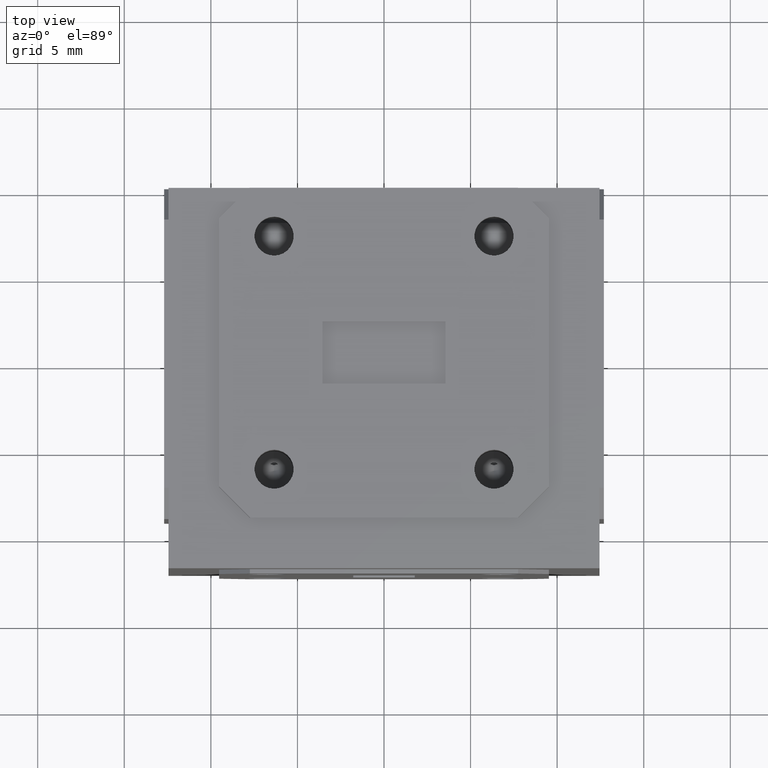
[diagram: clean part render]
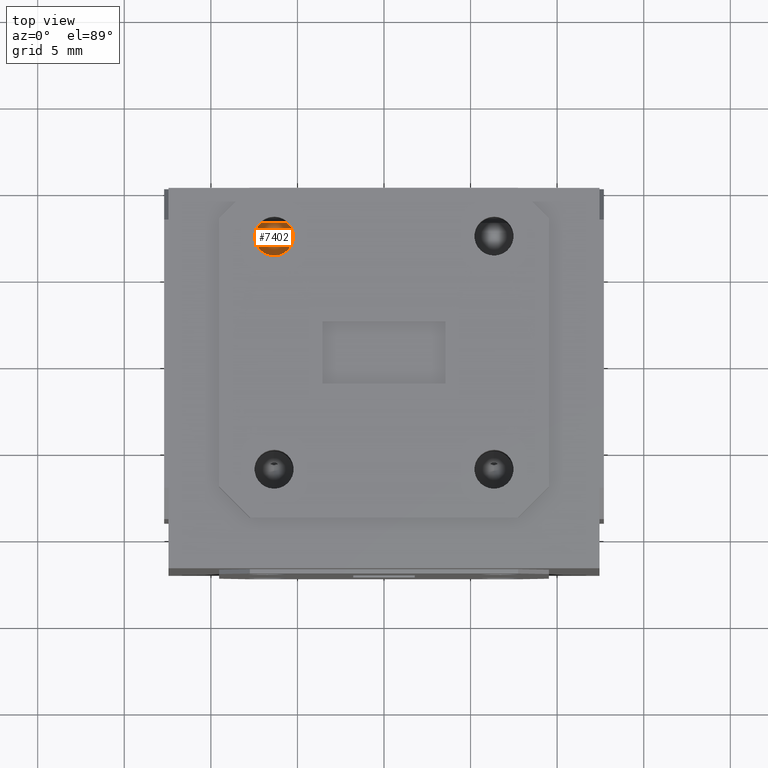
[diagram: same view with one face highlighted and labeled with its STEP entity id]
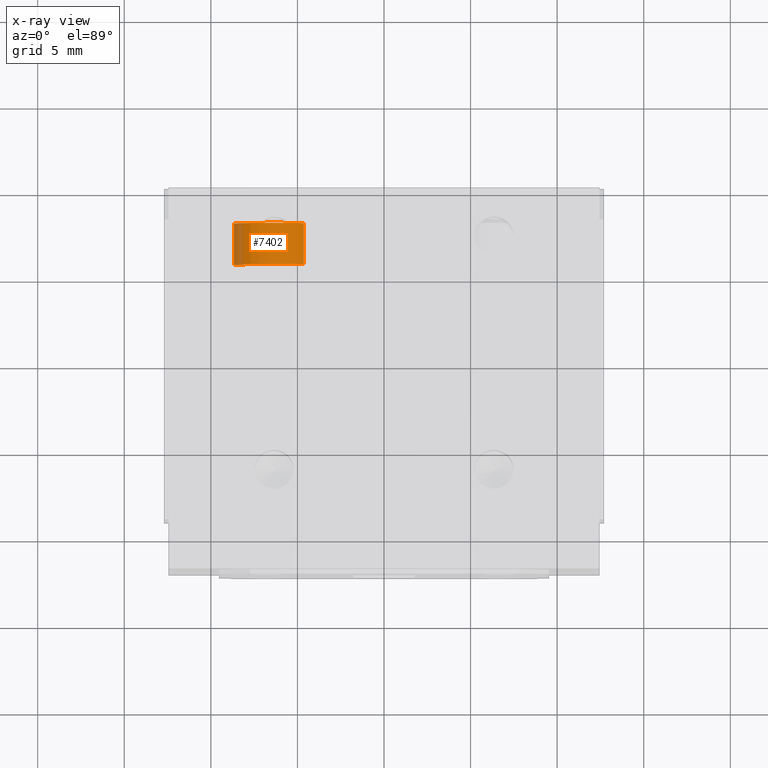
[diagram: x-ray of the same camera — body ghosted, the highlighted face saturated]
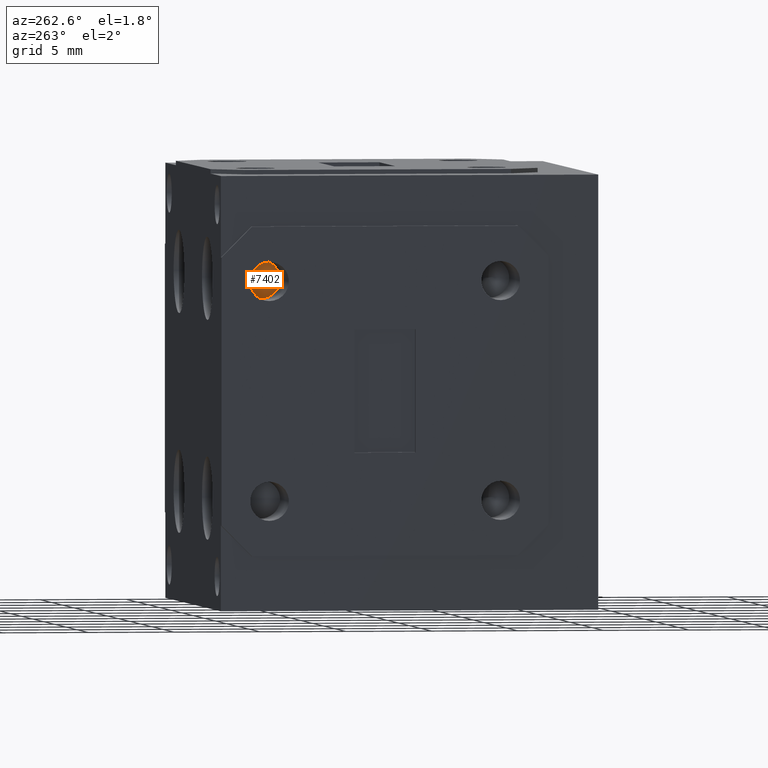
[diagram: same view with one face highlighted and labeled with its STEP entity id]
A machine part, top view. The second image highlights one B-rep face of the part: STEP entity #7402.
The next image is the same camera in x-ray: the body ghosted, the highlighted face saturated — about 13% of this face is hidden behind the body in this view.
A second angle (auxiliary view) of the same face is appended — the face is thin or edge-on in the first view.
In plain terms, the highlighted cylindrical surface (partial cylindrical patch) has radius 2.3241 mm, axis along (0, -1, -0).
Its self-contained STEP definition (entity closure, byte-faithful):
#547 = VERTEX_POINT ( 'NONE', #8699 ) ;
#1359 = DIRECTION ( 'NONE',  ( 0.7407202466362239335, 0.000000000000000000, 0.6718136022909715344 ) ) ;
#1417 = FACE_OUTER_BOUND ( 'NONE', #4294, .T. ) ;
#1430 = ORIENTED_EDGE ( 'NONE', *, *, #8737, .T. ) ;
#1705 = VERTEX_POINT ( 'NONE', #11156 ) ;
#1827 = VERTEX_POINT ( 'NONE', #1929 ) ;
#1929 = CARTESIAN_POINT ( 'NONE',  ( -0.3177759025672145521, -0.1708500000000000296, 0.1885290553903762323 ) ) ;
#2069 = CIRCLE ( 'NONE', #3317, 0.09149999999999999800 ) ;
#2202 = DIRECTION ( 'NONE',  ( -0.7407202466362244886, 0.000000000000000000, -0.6718136022909708682 ) ) ;
#2414 = DIRECTION ( 'NONE',  ( 7.609667954468320450E-18, -1.000000000000000000, -3.485413720941533510E-17 ) ) ;
#2529 = ORIENTED_EDGE ( 'NONE', *, *, #6663, .F. ) ;
#2722 = VECTOR ( 'NONE', #2414, 39.37007874015748143 ) ;
#2750 = ORIENTED_EDGE ( 'NONE', *, *, #8195, .T. ) ;
#3152 = DIRECTION ( 'NONE',  ( 7.609667954468320450E-18, -1.000000000000000000, -3.485413720941533510E-17 ) ) ;
#3317 = AXIS2_PLACEMENT_3D ( 'NONE', #6132, #6944, #8661 ) ;
#3465 = EDGE_CURVE ( 'NONE', #1827, #547, #2069, .T. ) ;
#4009 = CARTESIAN_POINT ( 'NONE',  ( -0.2500000000000000000, -0.06800000000000000488, 0.2500000000000000555 ) ) ;
#4294 = EDGE_LOOP ( 'NONE', ( #2529, #2750, #1430, #6703 ) ) ;
#5432 = VECTOR ( 'NONE', #10695, 39.37007874015748143 ) ;
#6132 = CARTESIAN_POINT ( 'NONE',  ( -0.2500000000000000000, -0.1708500000000000296, 0.2500000000000000555 ) ) ;
#6331 = CARTESIAN_POINT ( 'NONE',  ( -0.3177759025672145521, -0.06800000000000000488, 0.1885290553903762045 ) ) ;
#6494 = AXIS2_PLACEMENT_3D ( 'NONE', #9944, #3152, #1359 ) ;
#6663 = EDGE_CURVE ( 'NONE', #7512, #547, #8480, .T. ) ;
#6703 = ORIENTED_EDGE ( 'NONE', *, *, #3465, .T. ) ;
#6944 = DIRECTION ( 'NONE',  ( -7.609667954468320450E-18, 1.000000000000000000, 3.485413720941533510E-17 ) ) ;
#7258 = LINE ( 'NONE', #6331, #5432 ) ;
#7402 = ADVANCED_FACE ( 'NONE', ( #1417 ), #9949, .T. ) ;
#7512 = VERTEX_POINT ( 'NONE', #10287 ) ;
#7582 = DIRECTION ( 'NONE',  ( 7.609667954468320450E-18, -1.000000000000000000, -3.485413720941533510E-17 ) ) ;
#8195 = EDGE_CURVE ( 'NONE', #7512, #1705, #8505, .T. ) ;
#8480 = LINE ( 'NONE', #11007, #2722 ) ;
#8505 = CIRCLE ( 'NONE', #6494, 0.09150000000000001188 ) ;
#8661 = DIRECTION ( 'NONE',  ( 0.7407202466362244886, 0.000000000000000000, 0.6718136022909708682 ) ) ;
#8699 = CARTESIAN_POINT ( 'NONE',  ( -0.1822240974327854202, -0.1708500000000000296, 0.3114709446096238787 ) ) ;
#8727 = AXIS2_PLACEMENT_3D ( 'NONE', #4009, #7582, #2202 ) ;
#8737 = EDGE_CURVE ( 'NONE', #1705, #1827, #7258, .T. ) ;
#9944 = CARTESIAN_POINT ( 'NONE',  ( -0.2500000000000000000, -0.07715000000000002411, 0.2500000000000000555 ) ) ;
#9949 = CYLINDRICAL_SURFACE ( 'NONE', #8727, 0.09150000000000003963 ) ;
#10287 = CARTESIAN_POINT ( 'NONE',  ( -0.1822240974327854202, -0.07715000000000002411, 0.3114709446096238787 ) ) ;
#10695 = DIRECTION ( 'NONE',  ( 7.609667954468320450E-18, -1.000000000000000000, -3.485413720941533510E-17 ) ) ;
#11007 = CARTESIAN_POINT ( 'NONE',  ( -0.1822240974327854202, -0.06800000000000000488, 0.3114709446096238787 ) ) ;
#11156 = CARTESIAN_POINT ( 'NONE',  ( -0.3177759025672145521, -0.07715000000000002411, 0.1885290553903762323 ) ) ;